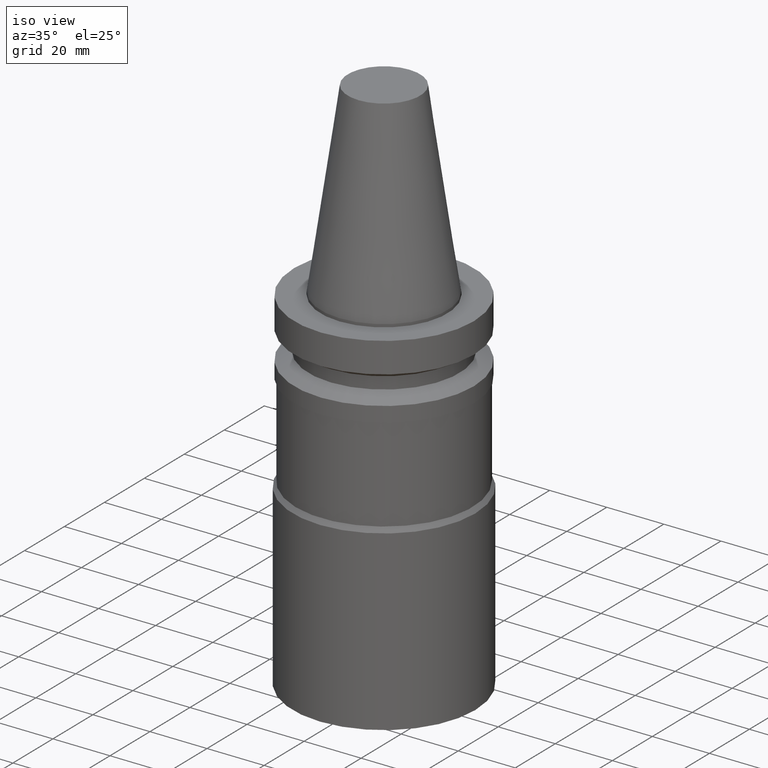
[diagram: clean part render]
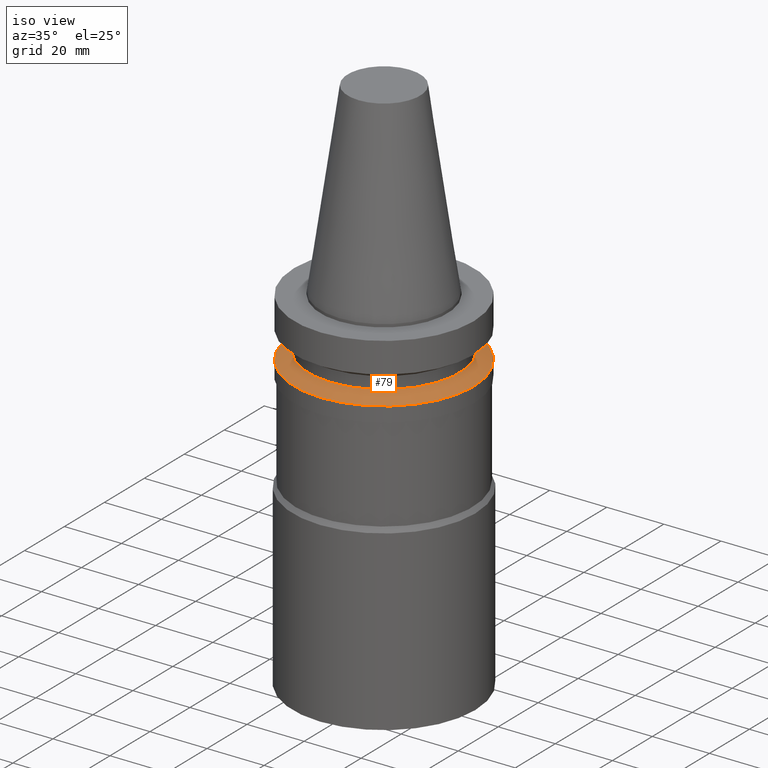
[diagram: same view with one face highlighted and labeled with its STEP entity id]
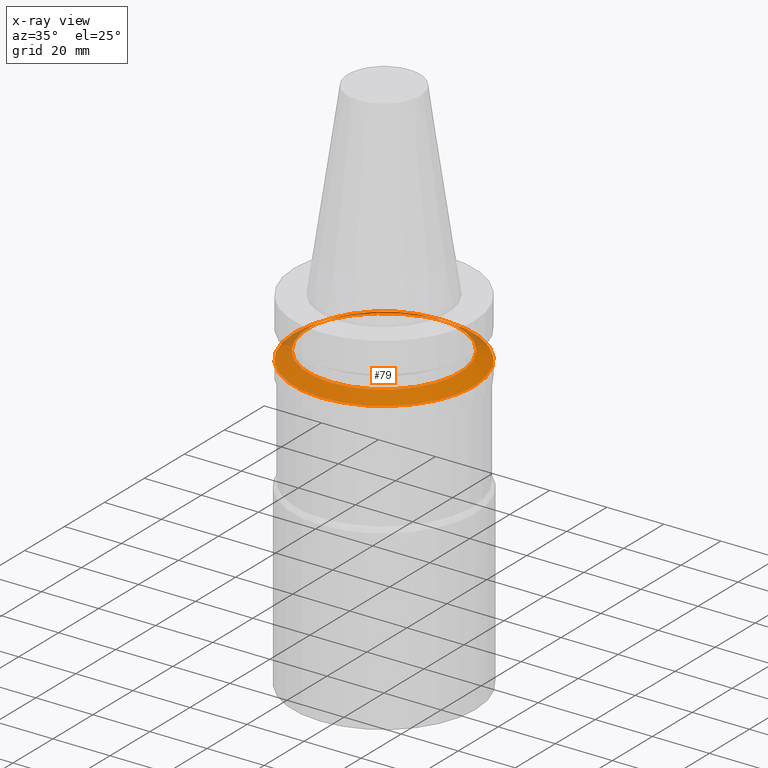
[diagram: x-ray of the same camera — body ghosted, the highlighted face saturated]
A machine part, iso view. The second image highlights one B-rep face of the part: STEP entity #79.
The next image is the same camera in x-ray: the body ghosted, the highlighted face saturated — about 10% of this face is hidden behind the body in this view.
In plain terms, the highlighted conical surface has half-angle 60 deg.
Its self-contained STEP definition (entity closure, byte-faithful):
#79=ADVANCED_FACE('',(#102,#103),#104,.T.);
#102=FACE_BOUND('',#142,.T.);
#103=FACE_BOUND('',#143,.T.);
#104=CONICAL_SURFACE('',#144,29.0,1.04719755058882);
#142=EDGE_LOOP('',(#190));
#143=EDGE_LOOP('',(#191));
#144=AXIS2_PLACEMENT_3D('',#192,#193,#194);
#190=ORIENTED_EDGE('',*,*,#243,.F.);
#191=ORIENTED_EDGE('',*,*,#242,.T.);
#192=CARTESIAN_POINT('',(1.23423727306135E-015,2.46847454612269E-015,-20.156624325));
#193=DIRECTION('',(6.12323399573677E-017,1.22464679914735E-016,-1.0));
#194=DIRECTION('',(-1.23259516440783E-032,1.0,1.22464679914735E-016));
#242=EDGE_CURVE('',#259,#259,#260,.T.);
#243=EDGE_CURVE('',#261,#261,#262,.T.);
#259=VERTEX_POINT('',#285);
#260=CIRCLE('',#286,26.5);
#261=VERTEX_POINT('',#287);
#262=CIRCLE('',#288,31.5);
#285=CARTESIAN_POINT('',(1.14585600304355E-015,26.5,-18.71324865));
#286=AXIS2_PLACEMENT_3D('',#315,#316,#317);
#287=CARTESIAN_POINT('',(1.32261854307914E-015,31.5,-21.6));
#288=AXIS2_PLACEMENT_3D('',#318,#319,#320);
#315=CARTESIAN_POINT('',(1.14585600304355E-015,2.2917120060871E-015,-18.71324865));
#316=DIRECTION('',(6.12323399573677E-017,1.22464679914735E-016,-1.0));
#317=DIRECTION('',(-1.23259516440783E-032,1.0,1.22464679914735E-016));
#318=CARTESIAN_POINT('',(1.32261854307914E-015,2.64523708615828E-015,-21.6));
#319=DIRECTION('',(6.12323399573677E-017,1.22464679914735E-016,-1.0));
#320=DIRECTION('',(-1.23259516440783E-032,1.0,1.22464679914735E-016));